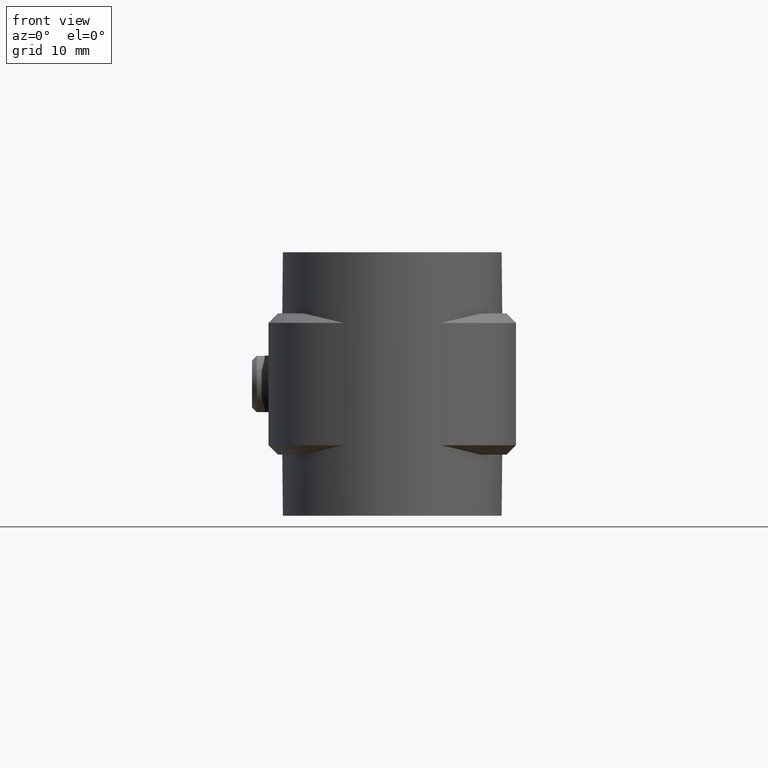
[diagram: clean part render]
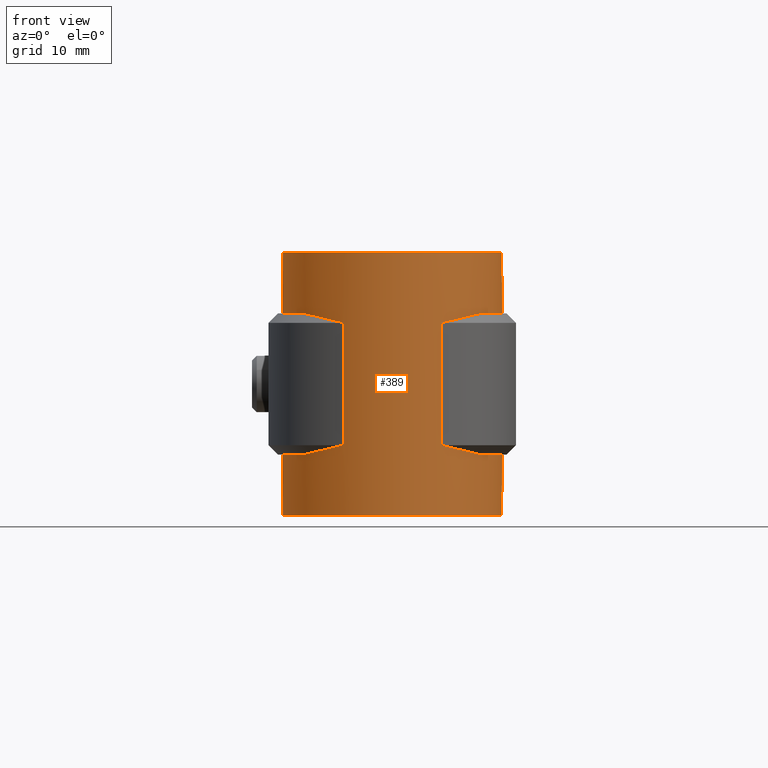
[diagram: same view with one face highlighted and labeled with its STEP entity id]
A machine part, front view. The second image highlights one B-rep face of the part: STEP entity #389.
In plain terms, the highlighted cylindrical surface (partial cylindrical patch) has radius 11.685 mm, axis along (0, 0, -1).
Its self-contained STEP definition (entity closure, byte-faithful):
#389 = ADVANCED_FACE( '', ( #667 ), #668, .T. );
#667 = FACE_OUTER_BOUND( '', #1365, .T. );
#668 = CYLINDRICAL_SURFACE( '', #1366, 11.6850000000000 );
#1365 = EDGE_LOOP( '', ( #3310, #3311, #3312, #3313, #3314, #3315, #3316, #3317, #3318, #3319, #3320, #3321, #3322, #3323, #3324, #3325 ) );
#1366 = AXIS2_PLACEMENT_3D( '', #3326, #3327, #3328 );
#3310 = ORIENTED_EDGE( '', *, *, #4626, .T. );
#3311 = ORIENTED_EDGE( '', *, *, #4627, .T. );
#3312 = ORIENTED_EDGE( '', *, *, #4621, .T. );
#3313 = ORIENTED_EDGE( '', *, *, #4628, .F. );
#3314 = ORIENTED_EDGE( '', *, *, #4629, .T. );
#3315 = ORIENTED_EDGE( '', *, *, #4630, .F. );
#3316 = ORIENTED_EDGE( '', *, *, #4631, .T. );
#3317 = ORIENTED_EDGE( '', *, *, #4632, .F. );
#3318 = ORIENTED_EDGE( '', *, *, #4633, .F. );
#3319 = ORIENTED_EDGE( '', *, *, #4634, .F. );
#3320 = ORIENTED_EDGE( '', *, *, #4635, .T. );
#3321 = ORIENTED_EDGE( '', *, *, #4636, .F. );
#3322 = ORIENTED_EDGE( '', *, *, #4637, .T. );
#3323 = ORIENTED_EDGE( '', *, *, #4638, .T. );
#3324 = ORIENTED_EDGE( '', *, *, #4639, .F. );
#3325 = ORIENTED_EDGE( '', *, *, #4640, .T. );
#3326 = CARTESIAN_POINT( '', ( 0.000000000000000, 0.000000000000000, -26.5000000000000 ) );
#3327 = DIRECTION( '', ( 0.000000000000000, 0.000000000000000, -1.00000000000000 ) );
#3328 = DIRECTION( '', ( 0.000000000000000, 1.00000000000000, 0.000000000000000 ) );
#4621 = EDGE_CURVE( '', #5302, #5300, #5303, .T. );
#4626 = EDGE_CURVE( '', #5310, #5311, #5312, .T. );
#4627 = EDGE_CURVE( '', #5311, #5302, #5313, .F. );
#4628 = EDGE_CURVE( '', #5314, #5300, #5315, .F. );
#4629 = EDGE_CURVE( '', #5314, #5316, #5317, .T. );
#4630 = EDGE_CURVE( '', #5318, #5316, #5319, .F. );
#4631 = EDGE_CURVE( '', #5318, #5320, #5321, .T. );
#4632 = EDGE_CURVE( '', #5322, #5320, #5323, .T. );
#4633 = EDGE_CURVE( '', #5324, #5322, #5325, .T. );
#4634 = EDGE_CURVE( '', #5326, #5324, #5327, .F. );
#4635 = EDGE_CURVE( '', #5326, #5328, #5329, .T. );
#4636 = EDGE_CURVE( '', #5330, #5328, #5331, .T. );
#4637 = EDGE_CURVE( '', #5330, #5332, #5333, .T. );
#4638 = EDGE_CURVE( '', #5332, #5334, #5335, .F. );
#4639 = EDGE_CURVE( '', #5336, #5334, #5337, .T. );
#4640 = EDGE_CURVE( '', #5336, #5310, #5338, .T. );
#5300 = VERTEX_POINT( '', #7237 );
#5302 = VERTEX_POINT( '', #7239 );
#5303 = B_SPLINE_CURVE_WITH_KNOTS( '', 3, ( #7240, #7241, #7242, #7243, #7244, #7245, #7246, #7247 ), .UNSPECIFIED., .F., .F., ( 4, 2, 2, 4 ), ( 0.000000000000000, 0.00277693447100946, 0.00416540170651419, 0.00555386894201892 ), .UNSPECIFIED. );
#5310 = VERTEX_POINT( '', #7257 );
#5311 = VERTEX_POINT( '', #7258 );
#5312 = LINE( '', #7259, #7260 );
#5313 = CIRCLE( '', #7261, 11.6850000000000 );
#5314 = VERTEX_POINT( '', #7262 );
#5315 = LINE( '', #7263, #7264 );
#5316 = VERTEX_POINT( '', #7265 );
#5317 = B_SPLINE_CURVE_WITH_KNOTS( '', 3, ( #7266, #7267, #7268, #7269, #7270, #7271, #7272, #7273 ), .UNSPECIFIED., .F., .F., ( 4, 2, 2, 4 ), ( 0.000000000000000, 0.00277665507141476, 0.00416498260712214, 0.00555331014282953 ), .UNSPECIFIED. );
#5318 = VERTEX_POINT( '', #7274 );
#5319 = CIRCLE( '', #7275, 11.6850000000000 );
#5320 = VERTEX_POINT( '', #7276 );
#5321 = LINE( '', #7277, #7278 );
#5322 = VERTEX_POINT( '', #7279 );
#5323 = CIRCLE( '', #7280, 11.6850000000000 );
#5324 = VERTEX_POINT( '', #7281 );
#5325 = LINE( '', #7282, #7283 );
#5326 = VERTEX_POINT( '', #7284 );
#5327 = CIRCLE( '', #7285, 11.6850000000000 );
#5328 = VERTEX_POINT( '', #7286 );
#5329 = B_SPLINE_CURVE_WITH_KNOTS( '', 3, ( #7287, #7288, #7289, #7290, #7291, #7292, #7293, #7294 ), .UNSPECIFIED., .F., .F., ( 4, 2, 2, 4 ), ( 8.67361737988404E-019, 0.00277693447100946, 0.00416540170651419, 0.00555386894201892 ), .UNSPECIFIED. );
#5330 = VERTEX_POINT( '', #7295 );
#5331 = LINE( '', #7296, #7297 );
#5332 = VERTEX_POINT( '', #7298 );
#5333 = B_SPLINE_CURVE_WITH_KNOTS( '', 3, ( #7299, #7300, #7301, #7302, #7303, #7304, #7305, #7306 ), .UNSPECIFIED., .F., .F., ( 4, 2, 2, 4 ), ( 0.000000000000000, 0.00277665507141476, 0.00416498260712214, 0.00555331014282953 ), .UNSPECIFIED. );
#5334 = VERTEX_POINT( '', #7307 );
#5335 = CIRCLE( '', #7308, 11.6850000000000 );
#5336 = VERTEX_POINT( '', #7309 );
#5337 = LINE( '', #7310, #7311 );
#5338 = CIRCLE( '', #7312, 11.6850000000000 );
#7237 = CARTESIAN_POINT( '', ( 5.17424711952815, -10.4769457260241, -19.0000000000000 ) );
#7239 = CARTESIAN_POINT( '', ( 9.36374855338446, -6.98995264855138, -20.0000000000000 ) );
#7240 = CARTESIAN_POINT( '', ( 9.36374855338446, -6.98995264855138, -20.0000000000000 ) );
#7241 = CARTESIAN_POINT( '', ( 8.80777141071313, -7.73474026402721, -19.8662567322832 ) );
#7242 = CARTESIAN_POINT( '', ( 8.17732976921470, -8.39659906995325, -19.7135949908876 ) );
#7243 = CARTESIAN_POINT( '', ( 7.12557712528808, -9.27218792441015, -19.4614185974445 ) );
#7244 = CARTESIAN_POINT( '', ( 6.75595603801265, -9.54504092295827, -19.3731627320375 ) );
#7245 = CARTESIAN_POINT( '', ( 5.98484098098968, -10.0465131583437, -19.1902773140702 ) );
#7246 = CARTESIAN_POINT( '', ( 5.58611941732229, -10.2735344355388, -19.0963034165744 ) );
#7247 = CARTESIAN_POINT( '', ( 5.17424711952815, -10.4769457260241, -19.0000000000000 ) );
#7257 = CARTESIAN_POINT( '', ( 6.10000000000001, 9.96640481818795, -26.5000000000000 ) );
#7258 = CARTESIAN_POINT( '', ( 6.10000000000001, 9.96640481818795, -20.0000000000000 ) );
#7259 = CARTESIAN_POINT( '', ( 6.10000000000001, 9.96640481818795, -26.5000000000000 ) );
#7260 = VECTOR( '', #8528, 1000.00000000000 );
#7261 = AXIS2_PLACEMENT_3D( '', #8529, #8530, #8531 );
#7262 = CARTESIAN_POINT( '', ( 5.17424711952815, -10.4769457260241, -6.00000000000000 ) );
#7263 = CARTESIAN_POINT( '', ( 5.17424711952815, -10.4769457260241, -12.5000000000000 ) );
#7264 = VECTOR( '', #8532, 1000.00000000000 );
#7265 = CARTESIAN_POINT( '', ( 9.36374855338446, -6.98995264855138, -5.00000000000000 ) );
#7266 = CARTESIAN_POINT( '', ( 5.17424711952815, -10.4769457260241, -6.00000000000000 ) );
#7267 = CARTESIAN_POINT( '', ( 5.99812038289880, -10.0700595999212, -5.80736308192648 ) );
#7268 = CARTESIAN_POINT( '', ( 6.76012271471017, -9.57453056652366, -5.62618566399186 ) );
#7269 = CARTESIAN_POINT( '', ( 7.81281671051151, -8.70097910983363, -5.37381316001744 ) );
#7270 = CARTESIAN_POINT( '', ( 8.14915820169525, -8.38717719181260, -5.29280727259839 ) );
#7271 = CARTESIAN_POINT( '', ( 8.78712108340779, -7.71621822583115, -5.13897519271562 ) );
#7272 = CARTESIAN_POINT( '', ( 9.08572746453964, -7.36239001678169, -5.06687945611871 ) );
#7273 = CARTESIAN_POINT( '', ( 9.36374855338446, -6.98995264855138, -5.00000000000000 ) );
#7274 = CARTESIAN_POINT( '', ( 6.10000000000001, 9.96640481818795, -5.00000000000000 ) );
#7275 = AXIS2_PLACEMENT_3D( '', #8533, #8534, #8535 );
#7276 = CARTESIAN_POINT( '', ( 6.10000000000001, 9.96640481818795, 1.50000000000000 ) );
#7277 = CARTESIAN_POINT( '', ( 6.10000000000001, 9.96640481818795, -26.5000000000000 ) );
#7278 = VECTOR( '', #8536, 1000.00000000000 );
#7279 = CARTESIAN_POINT( '', ( -6.10000000000000, 9.96640481818793, 1.50000000000000 ) );
#7280 = AXIS2_PLACEMENT_3D( '', #8537, #8538, #8539 );
#7281 = CARTESIAN_POINT( '', ( -6.10000000000001, 9.96640481818795, -5.00000000000000 ) );
#7282 = CARTESIAN_POINT( '', ( -6.10000000000000, 9.96640481818793, -26.5000000000000 ) );
#7283 = VECTOR( '', #8540, 1000.00000000000 );
#7284 = CARTESIAN_POINT( '', ( -9.36374855338446, -6.98995264855138, -5.00000000000000 ) );
#7285 = AXIS2_PLACEMENT_3D( '', #8541, #8542, #8543 );
#7286 = CARTESIAN_POINT( '', ( -5.17424711952815, -10.4769457260241, -6.00000000000000 ) );
#7287 = CARTESIAN_POINT( '', ( -9.36374855338446, -6.98995264855138, -5.00000000000000 ) );
#7288 = CARTESIAN_POINT( '', ( -8.80777141071313, -7.73474026402720, -5.13374326771682 ) );
#7289 = CARTESIAN_POINT( '', ( -8.17732976921470, -8.39659906995325, -5.28640500911235 ) );
#7290 = CARTESIAN_POINT( '', ( -7.12557712528808, -9.27218792441015, -5.53858140255554 ) );
#7291 = CARTESIAN_POINT( '', ( -6.75595603801265, -9.54504092295827, -5.62683726796246 ) );
#7292 = CARTESIAN_POINT( '', ( -5.98484098098968, -10.0465131583437, -5.80972268592979 ) );
#7293 = CARTESIAN_POINT( '', ( -5.58611941732229, -10.2735344355388, -5.90369658342556 ) );
#7294 = CARTESIAN_POINT( '', ( -5.17424711952815, -10.4769457260241, -6.00000000000000 ) );
#7295 = CARTESIAN_POINT( '', ( -5.17424711952815, -10.4769457260241, -19.0000000000000 ) );
#7296 = CARTESIAN_POINT( '', ( -5.17424711952815, -10.4769457260241, -12.5000000000000 ) );
#7297 = VECTOR( '', #8544, 1000.00000000000 );
#7298 = CARTESIAN_POINT( '', ( -9.36374855338446, -6.98995264855138, -20.0000000000000 ) );
#7299 = CARTESIAN_POINT( '', ( -5.17424711952815, -10.4769457260241, -19.0000000000000 ) );
#7300 = CARTESIAN_POINT( '', ( -5.99812038289880, -10.0700595999212, -19.1926369180735 ) );
#7301 = CARTESIAN_POINT( '', ( -6.76012271471017, -9.57453056652366, -19.3738143360081 ) );
#7302 = CARTESIAN_POINT( '', ( -7.81281671051151, -8.70097910983362, -19.6261868399826 ) );
#7303 = CARTESIAN_POINT( '', ( -8.14915820169525, -8.38717719181261, -19.7071927274016 ) );
#7304 = CARTESIAN_POINT( '', ( -8.78712108340779, -7.71621822583115, -19.8610248072844 ) );
#7305 = CARTESIAN_POINT( '', ( -9.08572746453964, -7.36239001678170, -19.9331205438813 ) );
#7306 = CARTESIAN_POINT( '', ( -9.36374855338446, -6.98995264855138, -20.0000000000000 ) );
#7307 = CARTESIAN_POINT( '', ( -6.10000000000000, 9.96640481818793, -20.0000000000000 ) );
#7308 = AXIS2_PLACEMENT_3D( '', #8545, #8546, #8547 );
#7309 = CARTESIAN_POINT( '', ( -6.10000000000000, 9.96640481818793, -26.5000000000000 ) );
#7310 = CARTESIAN_POINT( '', ( -6.10000000000000, 9.96640481818793, -26.5000000000000 ) );
#7311 = VECTOR( '', #8548, 1000.00000000000 );
#7312 = AXIS2_PLACEMENT_3D( '', #8549, #8550, #8551 );
#8528 = DIRECTION( '', ( 0.000000000000000, 0.000000000000000, 1.00000000000000 ) );
#8529 = CARTESIAN_POINT( '', ( 0.000000000000000, 0.000000000000000, -20.0000000000000 ) );
#8530 = DIRECTION( '', ( 0.000000000000000, 0.000000000000000, 1.00000000000000 ) );
#8531 = DIRECTION( '', ( 1.00000000000000, 0.000000000000000, 0.000000000000000 ) );
#8532 = DIRECTION( '', ( 0.000000000000000, 0.000000000000000, 1.00000000000000 ) );
#8533 = CARTESIAN_POINT( '', ( 0.000000000000000, 0.000000000000000, -5.00000000000000 ) );
#8534 = DIRECTION( '', ( 0.000000000000000, 0.000000000000000, 1.00000000000000 ) );
#8535 = DIRECTION( '', ( 1.00000000000000, 0.000000000000000, 0.000000000000000 ) );
#8536 = DIRECTION( '', ( 0.000000000000000, 0.000000000000000, 1.00000000000000 ) );
#8537 = CARTESIAN_POINT( '', ( 0.000000000000000, 0.000000000000000, 1.50000000000000 ) );
#8538 = DIRECTION( '', ( 0.000000000000000, 0.000000000000000, 1.00000000000000 ) );
#8539 = DIRECTION( '', ( 1.00000000000000, 0.000000000000000, 0.000000000000000 ) );
#8540 = DIRECTION( '', ( 0.000000000000000, 0.000000000000000, 1.00000000000000 ) );
#8541 = CARTESIAN_POINT( '', ( 0.000000000000000, 0.000000000000000, -5.00000000000000 ) );
#8542 = DIRECTION( '', ( 0.000000000000000, 0.000000000000000, 1.00000000000000 ) );
#8543 = DIRECTION( '', ( 1.00000000000000, 0.000000000000000, 0.000000000000000 ) );
#8544 = DIRECTION( '', ( 0.000000000000000, 0.000000000000000, 1.00000000000000 ) );
#8545 = CARTESIAN_POINT( '', ( 0.000000000000000, 0.000000000000000, -20.0000000000000 ) );
#8546 = DIRECTION( '', ( 0.000000000000000, 0.000000000000000, 1.00000000000000 ) );
#8547 = DIRECTION( '', ( 1.00000000000000, 0.000000000000000, 0.000000000000000 ) );
#8548 = DIRECTION( '', ( 0.000000000000000, 0.000000000000000, 1.00000000000000 ) );
#8549 = CARTESIAN_POINT( '', ( 0.000000000000000, 0.000000000000000, -26.5000000000000 ) );
#8550 = DIRECTION( '', ( 0.000000000000000, 0.000000000000000, 1.00000000000000 ) );
#8551 = DIRECTION( '', ( 1.00000000000000, 0.000000000000000, 0.000000000000000 ) );